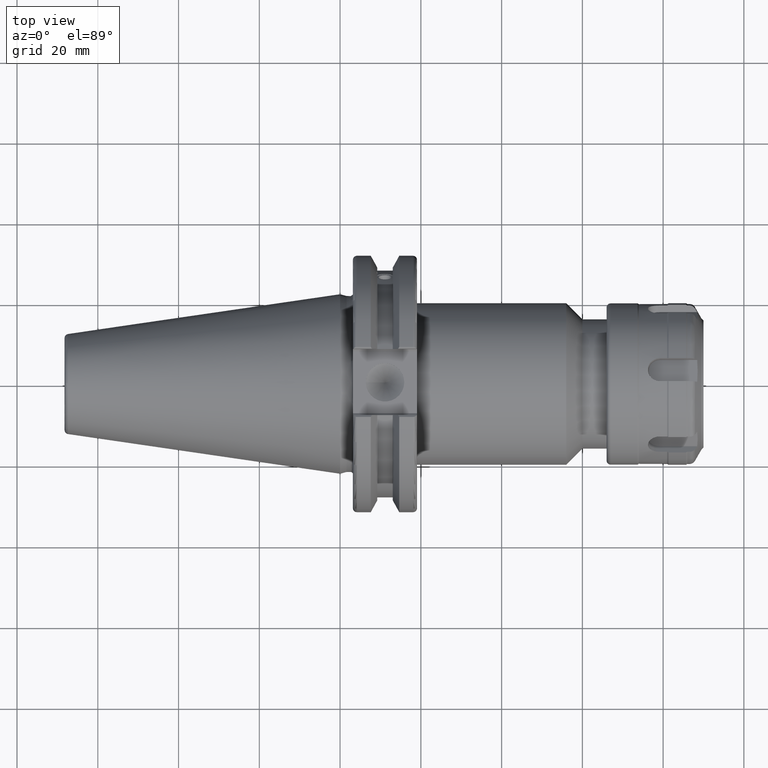
[diagram: clean part render]
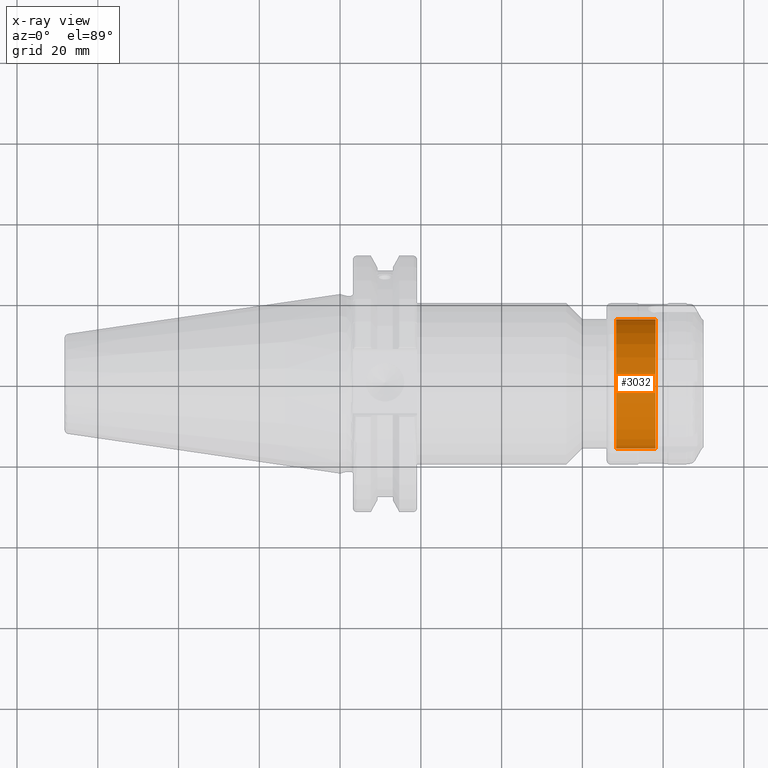
[diagram: x-ray — body ghosted, one internal face saturated and labeled with its STEP entity id]
A machine part, top view, then the same camera in x-ray: the body is ghosted and one INTERNAL B-rep face — a face not visible from any outside direction — is saturated and labeled: STEP entity #3032.
In plain terms, the highlighted cylindrical surface (bore or boss wall) has radius 16 mm, axis along (-1, 0, 0).
Its self-contained STEP definition (entity closure, byte-faithful):
#482=CYLINDRICAL_SURFACE('',#3453,16.);
#621=FACE_OUTER_BOUND('',#794,.T.);
#794=EDGE_LOOP('',(#2758,#2759,#2760,#2761,#2762));
#990=LINE('',#5810,#1180);
#1180=VECTOR('',#4280,16.);
#1315=CIRCLE('',#3451,16.);
#1316=CIRCLE('',#3452,16.);
#1317=CIRCLE('',#3454,16.);
#1590=VERTEX_POINT('',#5803);
#1591=VERTEX_POINT('',#5804);
#1592=VERTEX_POINT('',#5809);
#1994=EDGE_CURVE('',#1590,#1591,#1315,.T.);
#1995=EDGE_CURVE('',#1591,#1590,#1316,.T.);
#1997=EDGE_CURVE('',#1591,#1592,#990,.T.);
#1998=EDGE_CURVE('',#1592,#1592,#1317,.T.);
#2758=ORIENTED_EDGE('',*,*,#1994,.F.);
#2759=ORIENTED_EDGE('',*,*,#1995,.F.);
#2760=ORIENTED_EDGE('',*,*,#1997,.T.);
#2761=ORIENTED_EDGE('',*,*,#1998,.T.);
#2762=ORIENTED_EDGE('',*,*,#1997,.F.);
#3032=ADVANCED_FACE('',(#621),#482,.F.);
#3451=AXIS2_PLACEMENT_3D('',#5805,#4273,#4274);
#3452=AXIS2_PLACEMENT_3D('',#5806,#4275,#4276);
#3453=AXIS2_PLACEMENT_3D('',#5808,#4278,#4279);
#3454=AXIS2_PLACEMENT_3D('',#5811,#4281,#4282);
#4273=DIRECTION('center_axis',(1.,0.,0.));
#4274=DIRECTION('ref_axis',(0.,1.,0.));
#4275=DIRECTION('center_axis',(1.,0.,0.));
#4276=DIRECTION('ref_axis',(0.,1.,0.));
#4278=DIRECTION('center_axis',(1.,0.,0.));
#4279=DIRECTION('ref_axis',(0.,-1.,0.));
#4280=DIRECTION('',(1.,0.,0.));
#4281=DIRECTION('center_axis',(1.,0.,0.));
#4282=DIRECTION('ref_axis',(0.,1.,0.));
#5803=CARTESIAN_POINT('',(11.84641016151,-16.,0.));
#5804=CARTESIAN_POINT('',(11.84641016151,16.,1.95943487863577E-15));
#5805=CARTESIAN_POINT('Origin',(11.84641016151,0.,0.));
#5806=CARTESIAN_POINT('Origin',(11.84641016151,0.,0.));
#5808=CARTESIAN_POINT('Origin',(-1.2,0.,0.));
#5809=CARTESIAN_POINT('',(21.65358983849,16.,1.95943487863577E-15));
#5810=CARTESIAN_POINT('',(-1.2,16.,1.95943487863577E-15));
#5811=CARTESIAN_POINT('Origin',(21.65358983849,0.,0.));